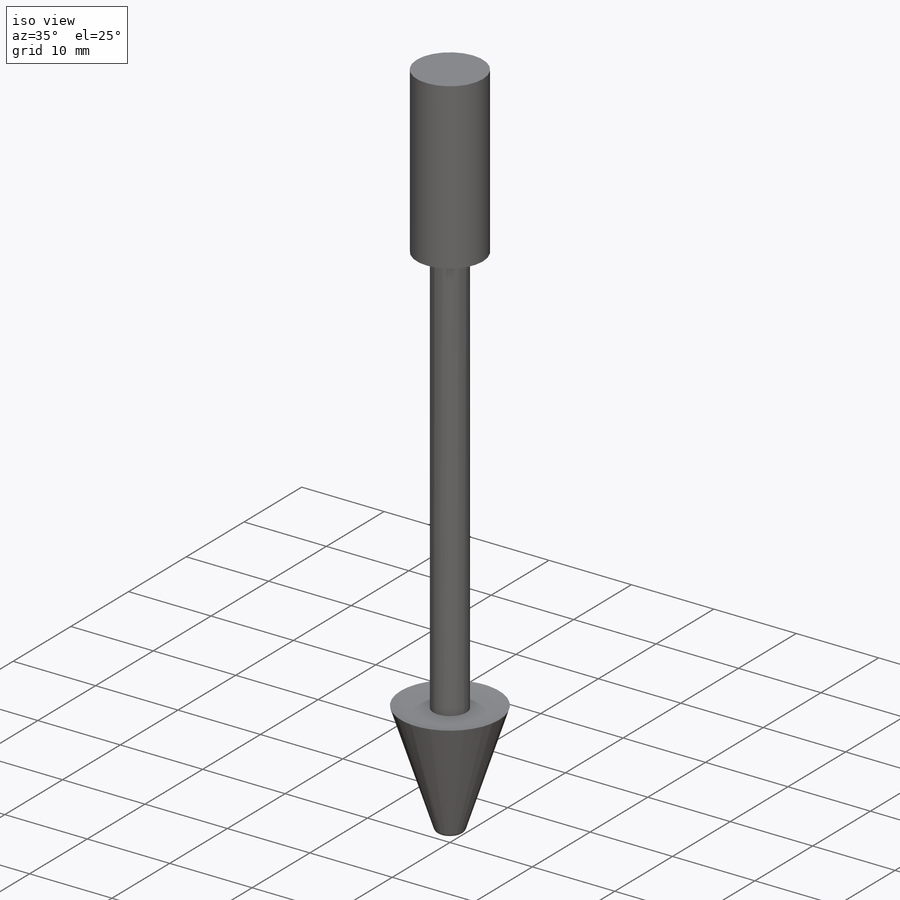
[diagram: iso view]
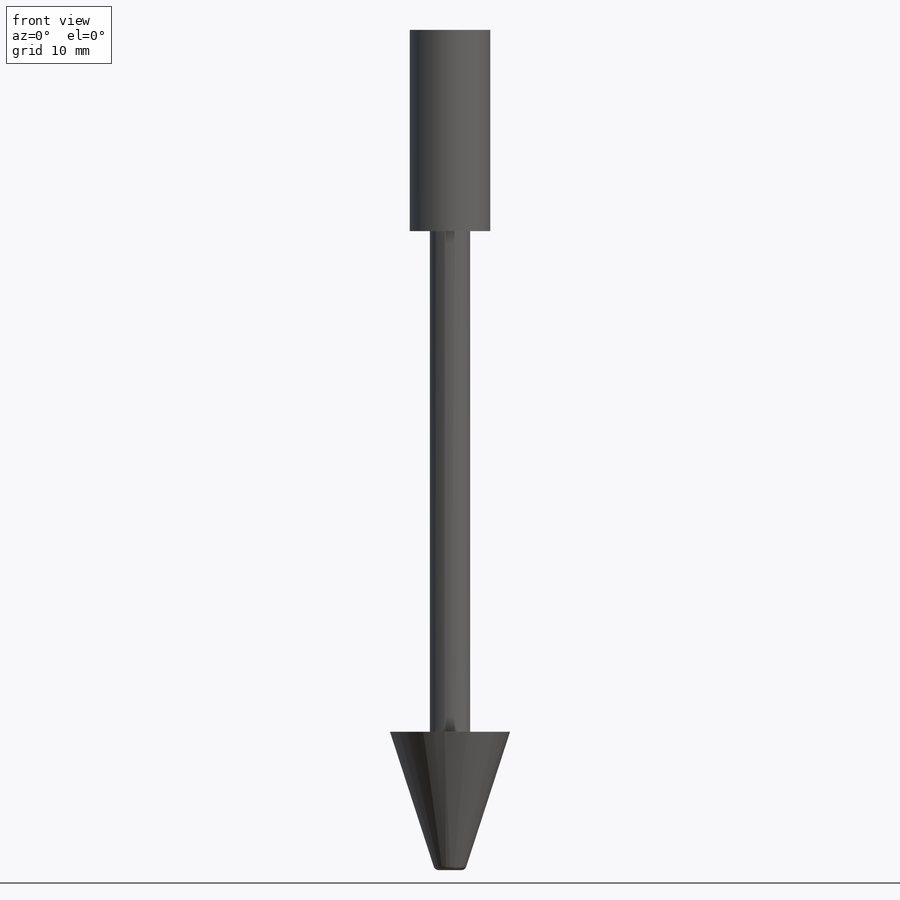
[diagram: front view]
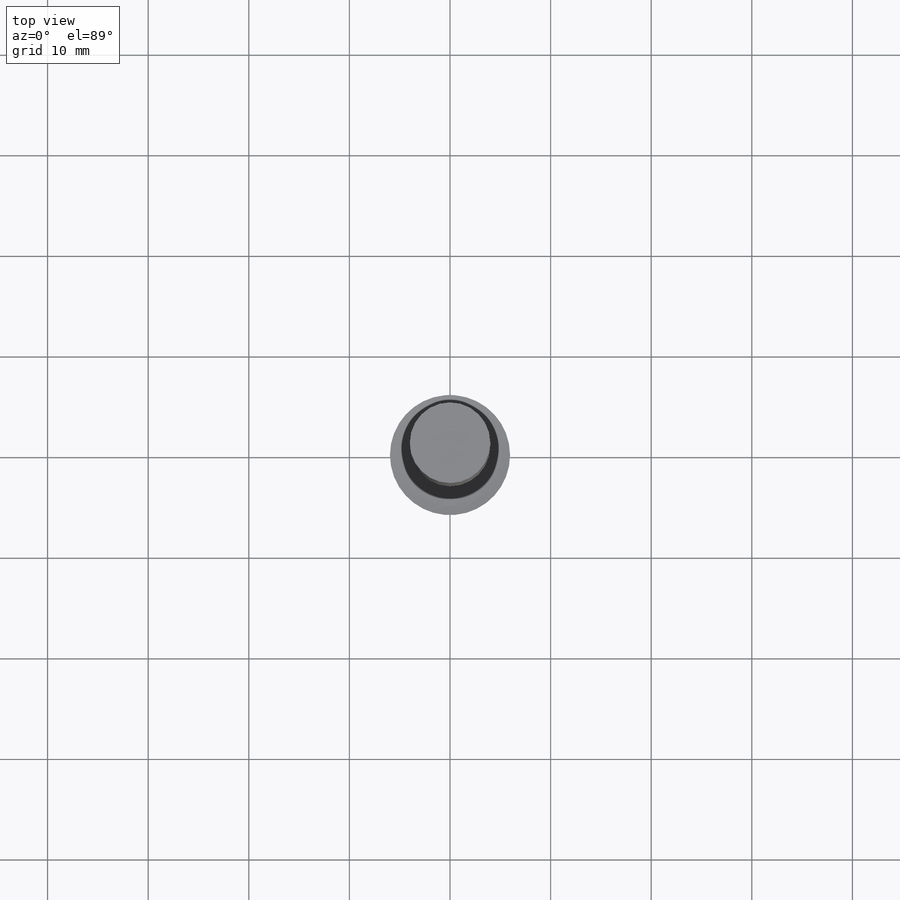
[diagram: top view]
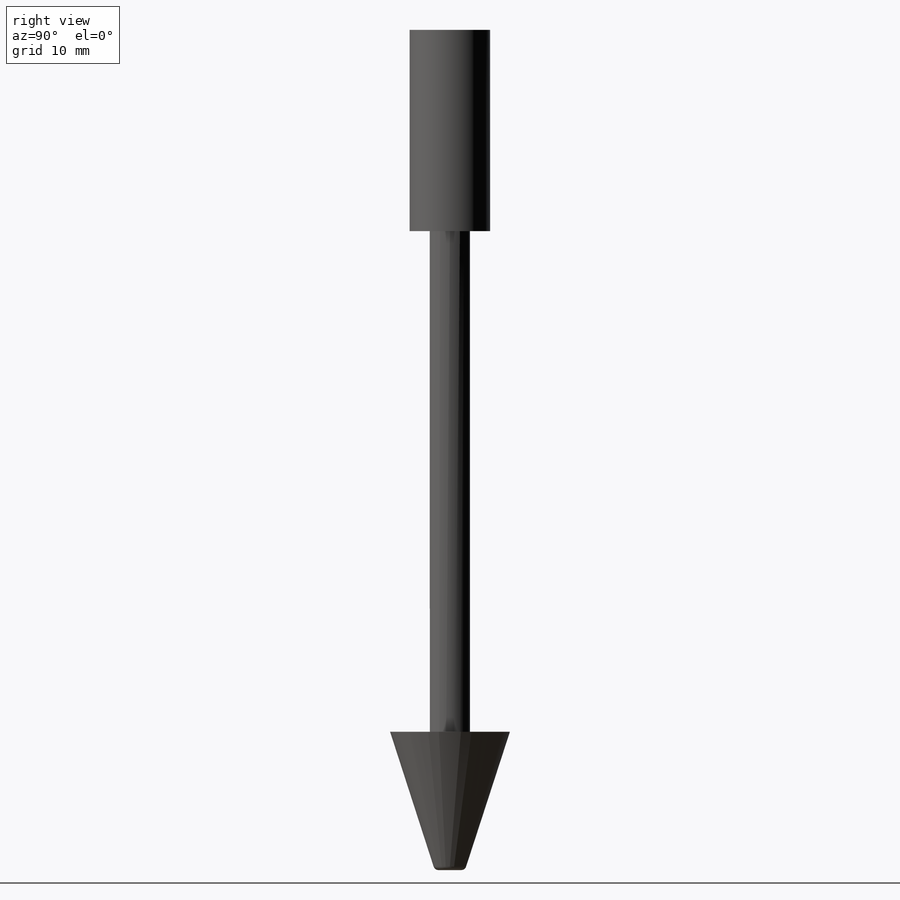
[diagram: right view]
SOLIDWORKS PART (.sldprt)
format: sldprt  version: not decoded by parser v0  size: 159,232 bytes
history: native  units: mm
features: sketch x4, extrude x3, plane x2, material x1, cut_revolve x1, fillet x1 (+12 scaffold rows collapsed)
feature tree (24):
  scaffold x12  (default folders/planes/origin — collapsed)
  material  "Material <not specified>"
  sketch  "Sketch1"  dims[D1=3.0mm]
  extrude  "Boss-Extrude1"  Depth=15mm
  sketch  "Sketch2"  dims[D1=4.0mm D2=13.5mm]
  cut_revolve  "Cut-Revolve1"  Angle=360deg
  fillet  "Fillet2"  Radius=0.5mm
  sketch  "Sketch3"
  extrude  "Boss-Extrude2"  Depth=50mm
  sketch  "Sketch4"  dims[D1=8.0mm]
  extrude  "Boss-Extrude3"  Depth=20mm
  plane  "Plane1"  Offset=10mm
  plane  "Plane2"
decode coverage: 8 of 9 modeling features carry decoded parameters
note: suppression state not decoded; provenance and decode notes live in map.json
